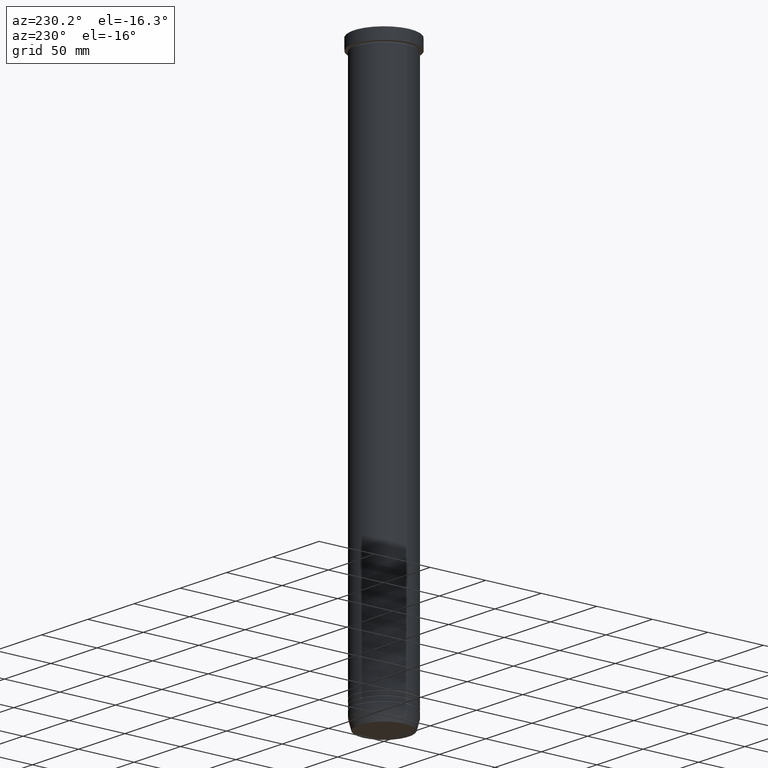
[diagram: clean part render]
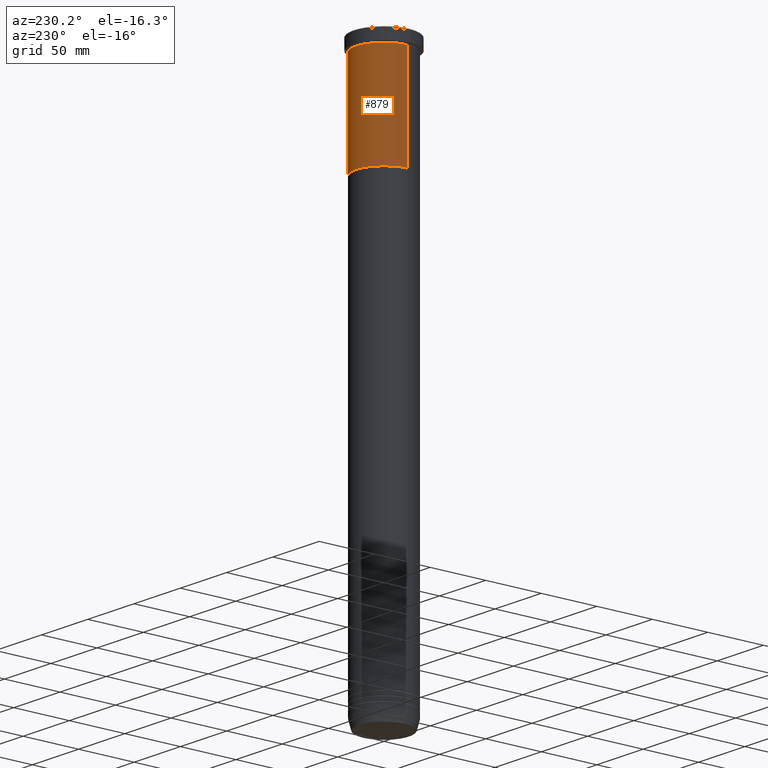
[diagram: same view with one face highlighted and labeled with its STEP entity id]
A machine part, auxiliary view. The second image highlights one B-rep face of the part: STEP entity #879.
In plain terms, the highlighted cylindrical surface (edge-blend (fillet) strip) has radius 25 mm, axis along (-0, -0, 1).
Its self-contained STEP definition (entity closure, byte-faithful):
#3 = ORIENTED_EDGE ( 'NONE', *, *, #527, .F. ) ;
#13 = DIRECTION ( 'NONE',  ( 1.000000000000000000, 0.000000000000000000, 0.000000000000000000 ) ) ;
#25 = EDGE_CURVE ( 'NONE', #147, #48, #214, .T. ) ;
#48 = VERTEX_POINT ( 'NONE', #1002 ) ;
#52 = AXIS2_PLACEMENT_3D ( 'NONE', #837, #370, #13 ) ;
#90 = LINE ( 'NONE', #177, #1035 ) ;
#107 = CIRCLE ( 'NONE', #328, 25.00000000000000000 ) ;
#147 = VERTEX_POINT ( 'NONE', #945 ) ;
#175 = CARTESIAN_POINT ( 'NONE',  ( -25.00000000000000000, 3.061616997868383043E-15, 0.000000000000000000 ) ) ;
#177 = CARTESIAN_POINT ( 'NONE',  ( 25.00000000000000000, 0.000000000000000000, 0.000000000000000000 ) ) ;
#197 = ORIENTED_EDGE ( 'NONE', *, *, #525, .F. ) ;
#214 = CIRCLE ( 'NONE', #52, 25.00000000000000000 ) ;
#269 = CYLINDRICAL_SURFACE ( 'NONE', #600, 25.00000000000000000 ) ;
#322 = EDGE_LOOP ( 'NONE', ( #335, #676, #3, #197 ) ) ;
#328 = AXIS2_PLACEMENT_3D ( 'NONE', #356, #976, #581 ) ;
#335 = ORIENTED_EDGE ( 'NONE', *, *, #25, .T. ) ;
#355 = DIRECTION ( 'NONE',  ( -0.000000000000000000, -0.000000000000000000, 1.000000000000000000 ) ) ;
#356 = CARTESIAN_POINT ( 'NONE',  ( 0.000000000000000000, 0.000000000000000000, -11.00000000000000000 ) ) ;
#367 = DIRECTION ( 'NONE',  ( 1.000000000000000000, 0.000000000000000000, 0.000000000000000000 ) ) ;
#370 = DIRECTION ( 'NONE',  ( -0.000000000000000000, -0.000000000000000000, 1.000000000000000000 ) ) ;
#422 = VERTEX_POINT ( 'NONE', #641 ) ;
#519 = CARTESIAN_POINT ( 'NONE',  ( 0.000000000000000000, 0.000000000000000000, 0.000000000000000000 ) ) ;
#525 = EDGE_CURVE ( 'NONE', #147, #422, #90, .T. ) ;
#527 = EDGE_CURVE ( 'NONE', #422, #550, #107, .T. ) ;
#550 = VERTEX_POINT ( 'NONE', #659 ) ;
#581 = DIRECTION ( 'NONE',  ( 1.000000000000000000, 0.000000000000000000, 0.000000000000000000 ) ) ;
#600 = AXIS2_PLACEMENT_3D ( 'NONE', #519, #355, #367 ) ;
#641 = CARTESIAN_POINT ( 'NONE',  ( 25.00000000000000000, 0.000000000000000000, -11.00000000000000000 ) ) ;
#659 = CARTESIAN_POINT ( 'NONE',  ( -25.00000000000000000, 3.061616997868383043E-15, -11.00000000000000000 ) ) ;
#676 = ORIENTED_EDGE ( 'NONE', *, *, #820, .T. ) ;
#811 = DIRECTION ( 'NONE',  ( -0.000000000000000000, -0.000000000000000000, 1.000000000000000000 ) ) ;
#820 = EDGE_CURVE ( 'NONE', #48, #550, #1060, .T. ) ;
#837 = CARTESIAN_POINT ( 'NONE',  ( 0.000000000000000000, 0.000000000000000000, -100.0000000000000000 ) ) ;
#879 = ADVANCED_FACE ( 'NONE', ( #937 ), #269, .T. ) ;
#937 = FACE_OUTER_BOUND ( 'NONE', #322, .T. ) ;
#945 = CARTESIAN_POINT ( 'NONE',  ( 25.00000000000000000, 0.000000000000000000, -100.0000000000000000 ) ) ;
#951 = VECTOR ( 'NONE', #975, 1000.000000000000000 ) ;
#975 = DIRECTION ( 'NONE',  ( -0.000000000000000000, -0.000000000000000000, 1.000000000000000000 ) ) ;
#976 = DIRECTION ( 'NONE',  ( -0.000000000000000000, -0.000000000000000000, 1.000000000000000000 ) ) ;
#1002 = CARTESIAN_POINT ( 'NONE',  ( -25.00000000000000000, 3.061616997868383043E-15, -100.0000000000000000 ) ) ;
#1035 = VECTOR ( 'NONE', #811, 1000.000000000000000 ) ;
#1060 = LINE ( 'NONE', #175, #951 ) ;